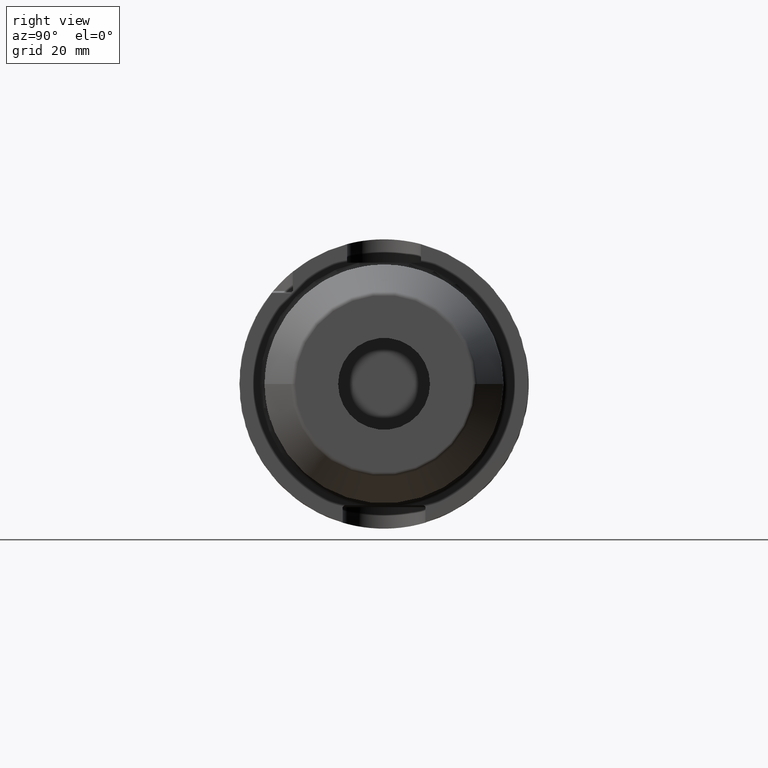
[diagram: clean part render]
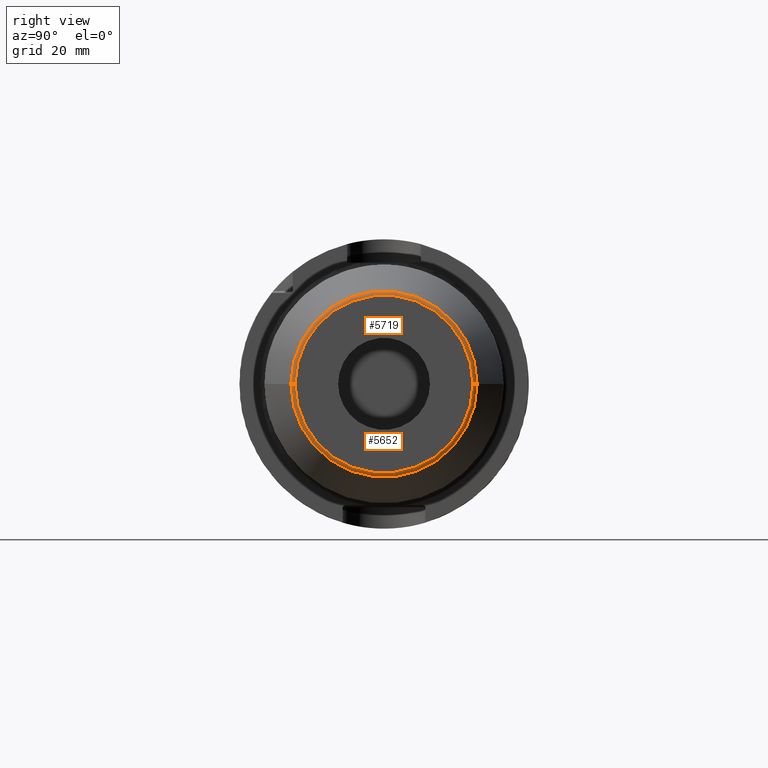
[diagram: same view with one multi-face feature highlighted, each face labeled with its STEP entity id]
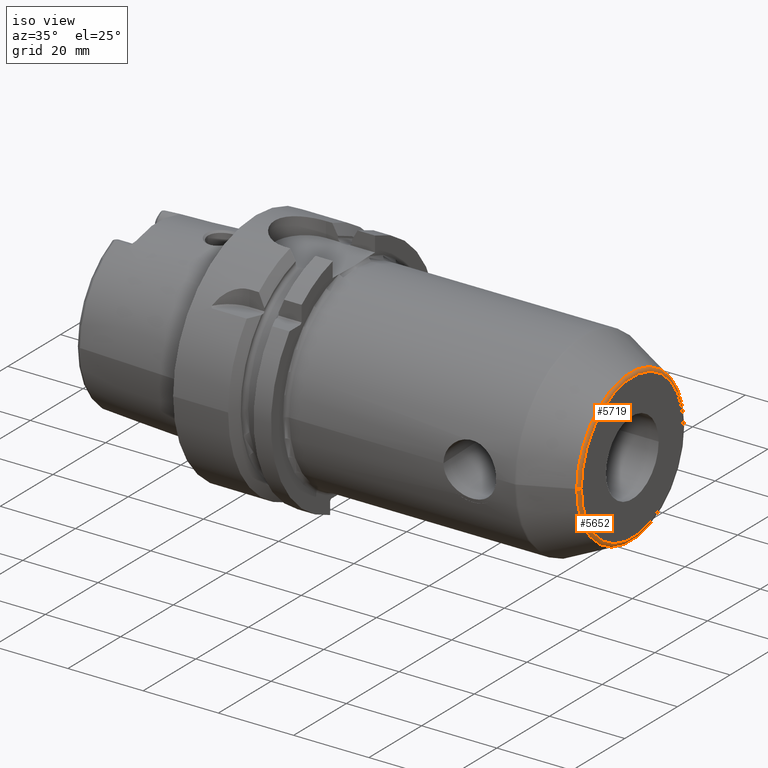
[diagram: same view with one multi-face feature highlighted, each face labeled with its STEP entity id]
A machine part, right view. The highlighted faces form ONE feature: a constant-radius fillet chain: 2 tangent blend faces with common blend radius 1 mm. The faces share edges in the B-rep.
A second angle (iso view) of the same feature is appended — it is thin or edge-on in the first view.
Their STEP definitions:
[1] entity #5719 (Torus):
#2236=CARTESIAN_POINT('',(1.E2,0.E0,0.E0));
#2237=DIRECTION('',(-1.E0,0.E0,0.E0));
#2238=DIRECTION('',(0.E0,-1.E0,0.E0));
#2239=AXIS2_PLACEMENT_3D('',#2236,#2237,#2238);
#2251=CARTESIAN_POINT('',(9.9E1,1.936292973919E1,3.450510710490E-12));
#2252=DIRECTION('',(0.E0,1.782020711549E-13,-1.E0));
#2253=DIRECTION('',(4.226182617408E-1,9.063077870366E-1,1.615059247538E-13));
#2254=AXIS2_PLACEMENT_3D('',#2251,#2252,#2253);
#2289=CARTESIAN_POINT('',(9.942261826174E1,0.E0,0.E0));
#2290=DIRECTION('',(-1.E0,0.E0,0.E0));
#2291=DIRECTION('',(0.E0,-1.E0,0.E0));
#2292=AXIS2_PLACEMENT_3D('',#2289,#2290,#2291);
#2294=CARTESIAN_POINT('',(9.9E1,-1.936292973919E1,-3.450628671686E-12));
#2295=DIRECTION('',(0.E0,-1.782081426871E-13,1.E0));
#2296=DIRECTION('',(4.226182617408E-1,-9.063077870366E-1,-1.615114274306E-13));
#2297=AXIS2_PLACEMENT_3D('',#2294,#2295,#2296);
#3261=CARTESIAN_POINT('',(9.942261826174E1,2.026923752623E1,0.E0));
#3262=CARTESIAN_POINT('',(9.942261826174E1,-2.026923752623E1,0.E0));
#3263=VERTEX_POINT('',#3261);
#3264=VERTEX_POINT('',#3262);
#3265=CARTESIAN_POINT('',(1.E2,1.936292973919E1,7.481869986297E-14));
#3266=CARTESIAN_POINT('',(1.E2,-1.936292973919E1,-7.718997485569E-14));
#3267=VERTEX_POINT('',#3265);
#3268=VERTEX_POINT('',#3266);
#5708=CARTESIAN_POINT('',(9.9E1,0.E0,0.E0));
#5709=DIRECTION('',(1.E0,0.E0,0.E0));
#5710=DIRECTION('',(0.E0,-9.999948345475E-1,-3.214168378821E-3));
#5711=AXIS2_PLACEMENT_3D('',#5708,#5709,#5710);
#5712=TOROIDAL_SURFACE('',#5711,1.936292973919E1,1.E0);
#5713=ORIENTED_EDGE('',*,*,#5702,.T.);
#5714=ORIENTED_EDGE('',*,*,#5648,.T.);
#5715=ORIENTED_EDGE('',*,*,#5629,.F.);
#5716=ORIENTED_EDGE('',*,*,#5645,.F.);
#5717=EDGE_LOOP('',(#5713,#5714,#5715,#5716));
#5718=FACE_OUTER_BOUND('',#5717,.F.);
#5719=ADVANCED_FACE('',(#5718),#5712,.T.);
#2240=CIRCLE('',#2239,1.936292973919E1);
#2255=CIRCLE('',#2254,1.E0);
#2293=CIRCLE('',#2292,2.026923752623E1);
#2298=CIRCLE('',#2297,1.E0);
#5629=EDGE_CURVE('',#3268,#3267,#2240,.T.);
#5645=EDGE_CURVE('',#3264,#3268,#2298,.T.);
#5648=EDGE_CURVE('',#3263,#3267,#2255,.T.);
#5702=EDGE_CURVE('',#3264,#3263,#2293,.T.);
[2] entity #5652 (Torus):
#2231=CARTESIAN_POINT('',(1.E2,0.E0,0.E0));
#2232=DIRECTION('',(-1.E0,0.E0,0.E0));
#2233=DIRECTION('',(0.E0,1.E0,0.E0));
#2234=AXIS2_PLACEMENT_3D('',#2231,#2232,#2233);
#2251=CARTESIAN_POINT('',(9.9E1,1.936292973919E1,3.450510710490E-12));
#2252=DIRECTION('',(0.E0,1.782020711549E-13,-1.E0));
#2253=DIRECTION('',(4.226182617408E-1,9.063077870366E-1,1.615059247538E-13));
#2254=AXIS2_PLACEMENT_3D('',#2251,#2252,#2253);
#2265=CARTESIAN_POINT('',(9.942261826174E1,0.E0,0.E0));
#2266=DIRECTION('',(-1.E0,0.E0,0.E0));
#2267=DIRECTION('',(0.E0,1.E0,0.E0));
#2268=AXIS2_PLACEMENT_3D('',#2265,#2266,#2267);
#2294=CARTESIAN_POINT('',(9.9E1,-1.936292973919E1,-3.450628671686E-12));
#2295=DIRECTION('',(0.E0,-1.782081426871E-13,1.E0));
#2296=DIRECTION('',(4.226182617408E-1,-9.063077870366E-1,-1.615114274306E-13));
#2297=AXIS2_PLACEMENT_3D('',#2294,#2295,#2296);
#3261=CARTESIAN_POINT('',(9.942261826174E1,2.026923752623E1,0.E0));
#3262=CARTESIAN_POINT('',(9.942261826174E1,-2.026923752623E1,0.E0));
#3263=VERTEX_POINT('',#3261);
#3264=VERTEX_POINT('',#3262);
#3265=CARTESIAN_POINT('',(1.E2,1.936292973919E1,7.481869986297E-14));
#3266=CARTESIAN_POINT('',(1.E2,-1.936292973919E1,-7.718997485569E-14));
#3267=VERTEX_POINT('',#3265);
#3268=VERTEX_POINT('',#3266);
#5638=CARTESIAN_POINT('',(9.9E1,0.E0,0.E0));
#5639=DIRECTION('',(1.E0,0.E0,0.E0));
#5640=DIRECTION('',(0.E0,9.999948345475E-1,3.214168378821E-3));
#5641=AXIS2_PLACEMENT_3D('',#5638,#5639,#5640);
#5642=TOROIDAL_SURFACE('',#5641,1.936292973919E1,1.E0);
#5644=ORIENTED_EDGE('',*,*,#5643,.T.);
#5646=ORIENTED_EDGE('',*,*,#5645,.T.);
#5647=ORIENTED_EDGE('',*,*,#5627,.F.);
#5649=ORIENTED_EDGE('',*,*,#5648,.F.);
#5650=EDGE_LOOP('',(#5644,#5646,#5647,#5649));
#5651=FACE_OUTER_BOUND('',#5650,.F.);
#5652=ADVANCED_FACE('',(#5651),#5642,.T.);
#2235=CIRCLE('',#2234,1.936292973919E1);
#2255=CIRCLE('',#2254,1.E0);
#2269=CIRCLE('',#2268,2.026923752623E1);
#2298=CIRCLE('',#2297,1.E0);
#5627=EDGE_CURVE('',#3267,#3268,#2235,.T.);
#5643=EDGE_CURVE('',#3263,#3264,#2269,.T.);
#5645=EDGE_CURVE('',#3264,#3268,#2298,.T.);
#5648=EDGE_CURVE('',#3263,#3267,#2255,.T.);